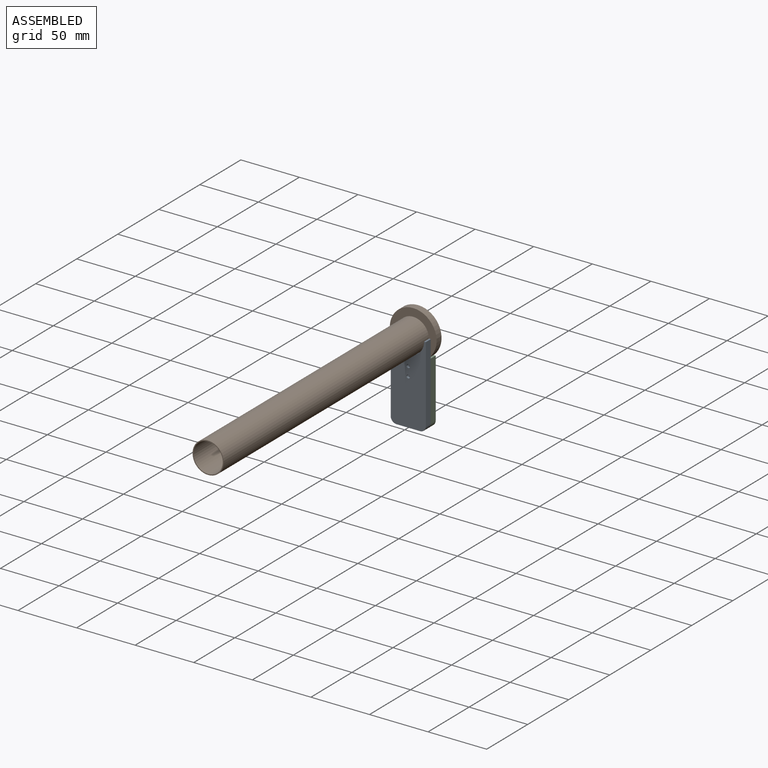
[diagram: assembled view]
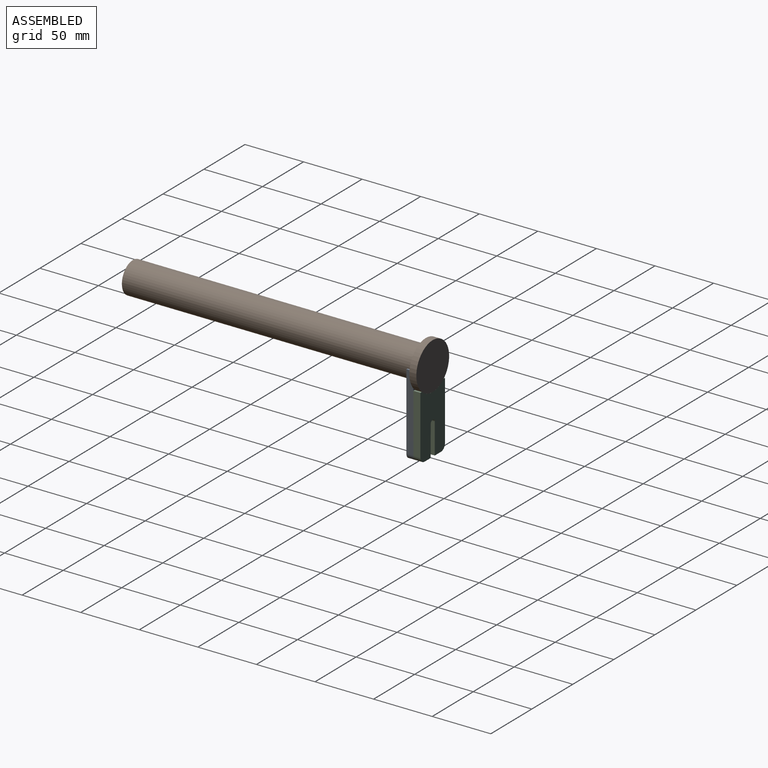
[diagram: assembled view, second angle]
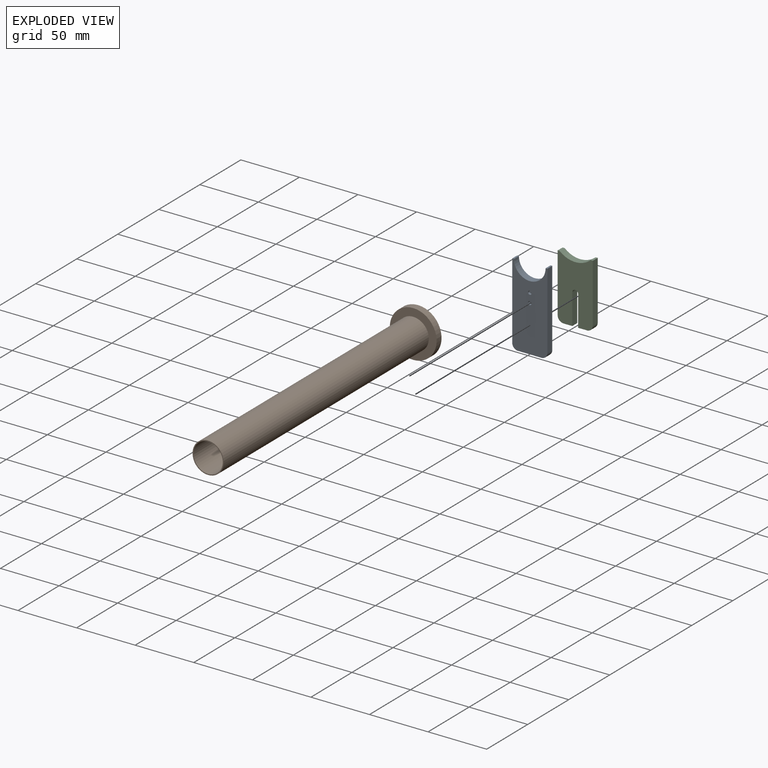
[diagram: exploded view]
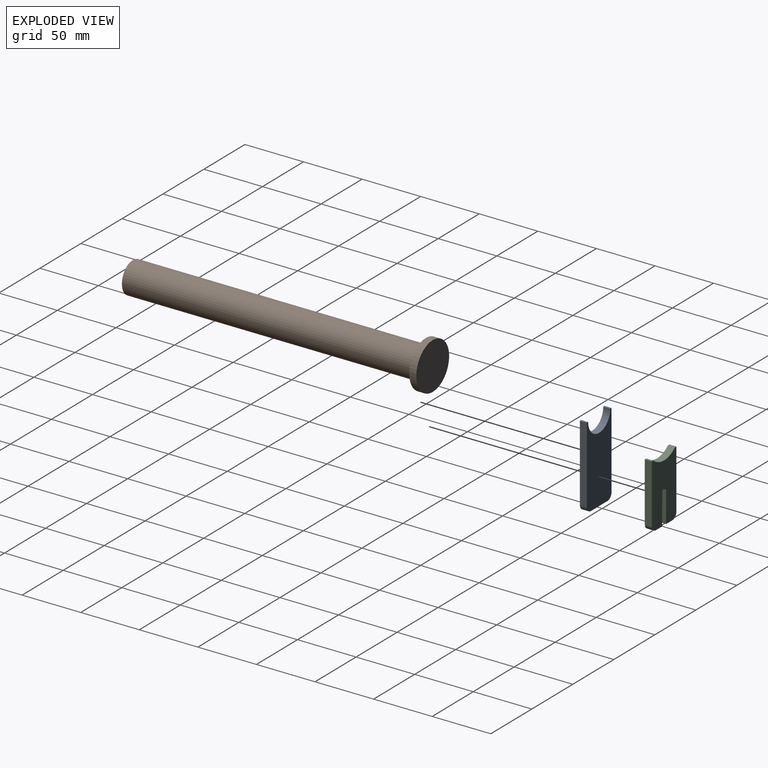
[diagram: exploded view, second angle]
ASSEMBLY  parts=3 mates=2
PART A: 14 faces, bbox 30x6x70 mm
  f0: cylinder r=13.5mm len=27mm, axis (0,1,0), area 254.5mm2, adj f1,f7,f8,f9
  f1: plane 6x1.5mm, normal (0,0,1), area 9mm2, adj f0,f2,f8,f9
  f2: plane 65x6mm, normal (-1,0,0), area 390mm2, adj f1,f3,f8,f9
  f3: cylinder r=5mm len=6mm, axis (0,1,0), area 47.1mm2, adj f2,f4,f8,f9
  f4: plane 20x6mm, normal (0,0,-1), area 120mm2, adj f3,f5,f8,f9
  f5: cylinder r=5mm len=6mm, axis (0,1,0), area 47.1mm2, adj f4,f6,f8,f9
  f6: plane 65x6mm, normal (1,0,0), area 390mm2, adj f5,f7,f8,f9
  f7: plane 6x1.5mm, normal (0,0,1), area 9mm2, adj f0,f6,f8,f9
  f8: plane 70x30mm, normal (0,-1,0), area 1788.9mm2, adj f0,f1,f2,f3,f4,f5,f6,f7
  f9: plane 70x30mm, normal (0,1,0), area 1803mm2, adj f0,f1,f2,f3,f4,f5,f6,f7
  f10: cylinder r=1.5mm len=3mm, axis (0,-1,0), area 18.8mm2, adj f8,f11
  f11: plane 3x3mm, normal (0,-1,0), area 7.1mm2, adj f10
  f12: cylinder r=1.5mm len=3mm, axis (0,-1,0), area 18.8mm2, adj f8,f13
  f13: plane 3x3mm, normal (0,-1,0), area 7.1mm2, adj f12
PART B: 7 faces, bbox 40x256x40 mm
  f0: cylinder r=20mm len=40mm, axis (0,1,0), area 754mm2, adj f1,f2
  f1: plane 40x40mm, normal (0,-1,0), area 700.9mm2, adj f0,f4
  f2: plane 40x40mm, normal (0,1,0), area 1256.6mm2, adj f0
  f3: cylinder r=12.5mm len=244mm, axis (0,1,0), area 19163.7mm2, adj f5,f6
  f4: cylinder r=13.3mm len=250mm, axis (0,1,0), area 20891.6mm2, adj f1,f5
  f5: plane 26.6x26.6mm, normal (0,-1,0), area 64.8mm2, adj f3,f4
  f6: plane 25x25mm, normal (0,-1,0), area 490.9mm2, adj f3
PART C: 14 faces, bbox 30x6x55 mm
  f0: cylinder r=5mm len=6mm, axis (0,1,0), area 47.1mm2, adj f1,f11,f12,f13
  f1: plane 50x6mm, normal (1,0,0), area 300mm2, adj f0,f2,f12,f13
  f2: plane 6x1.77mm, normal (0,0,1), area 10.6mm2, adj f1,f3,f12,f13
  f3: cylinder r=20mm len=26.46mm, axis (0,1,0), area 173.5mm2, adj f2,f4,f12,f13
  f4: plane 6x1.77mm, normal (0,0,1), area 10.6mm2, adj f3,f5,f12,f13
  f5: plane 50x6mm, normal (-1,0,0), area 300mm2, adj f4,f6,f12,f13
  f6: cylinder r=5mm len=6mm, axis (0,1,0), area 47.1mm2, adj f5,f7,f12,f13
  f7: plane 7.5x6mm, normal (0,0,-1), area 45mm2, adj f6,f8,f12,f13
  f8: plane 26x6mm, normal (1,0,0), area 156mm2, adj f7,f9,f12,f13
  f9: cylinder r=2.5mm len=6mm, axis (0,1,0), area 47.1mm2, adj f8,f10,f12,f13
  f10: plane 26x6mm, normal (-1,0,0), area 156mm2, adj f9,f11,f12,f13
  f11: plane 7.5x6mm, normal (0,0,-1), area 45mm2, adj f0,f10,f12,f13
  f12: plane 55x30mm, normal (0,-1,0), area 1408.8mm2, adj f0,f1,f2,f3,f4,f5,f6,f7
  f13: plane 55x30mm, normal (0,1,0), area 1408.8mm2, adj f0,f1,f2,f3,f4,f5,f6,f7
PLACE A t=(-79.87,3,40.89)mm
PLACE B t=(-94.87,9,110.89)mm
PLACE C t=(-79.87,9,40.89)mm
MATE cylindrical B.f4 <-> A.f0  axis (0,1,0) through (-94.87,3,110.89)mm
MATE fastened C.f12 <-> A.f9  axis (0,-1,0) through (-104.87,3,40.89)mm
